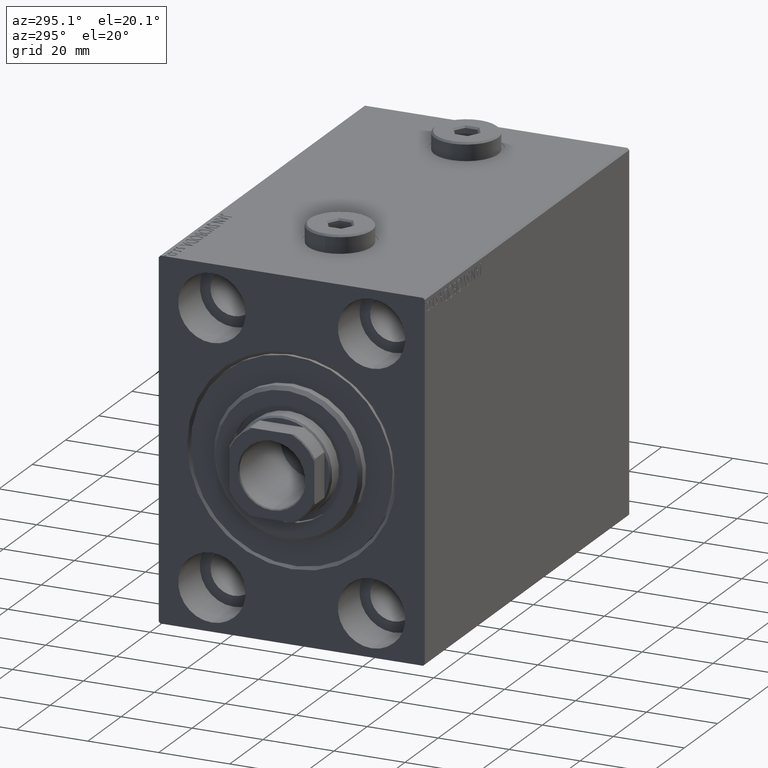
[diagram: clean part render]
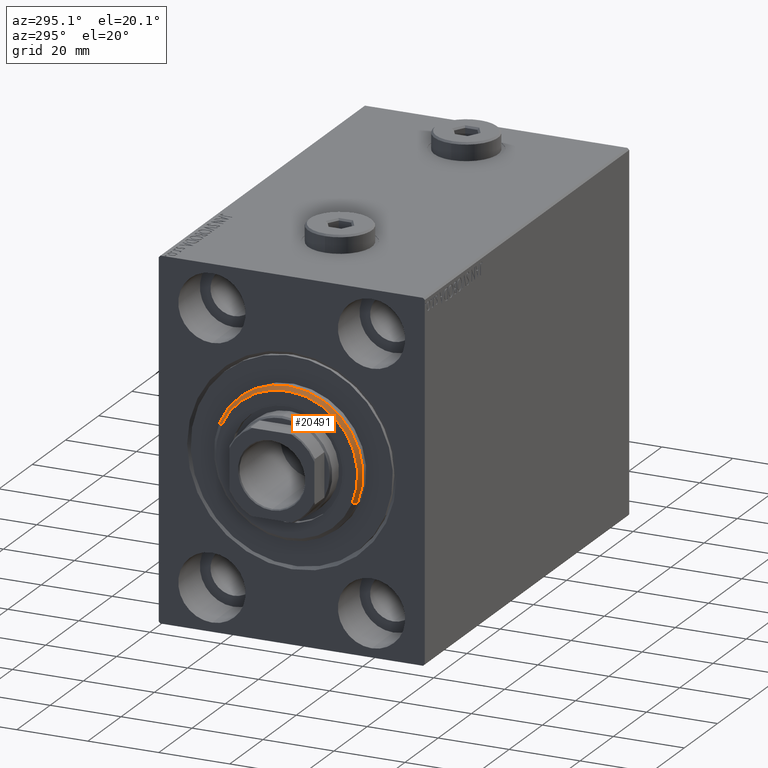
[diagram: same view with one face highlighted and labeled with its STEP entity id]
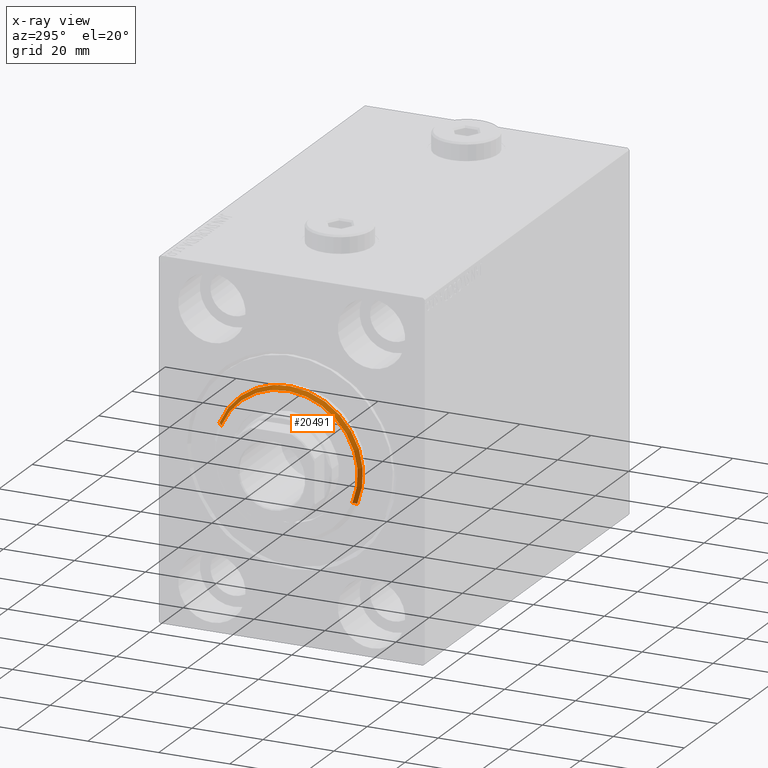
[diagram: x-ray of the same camera — body ghosted, the highlighted face saturated]
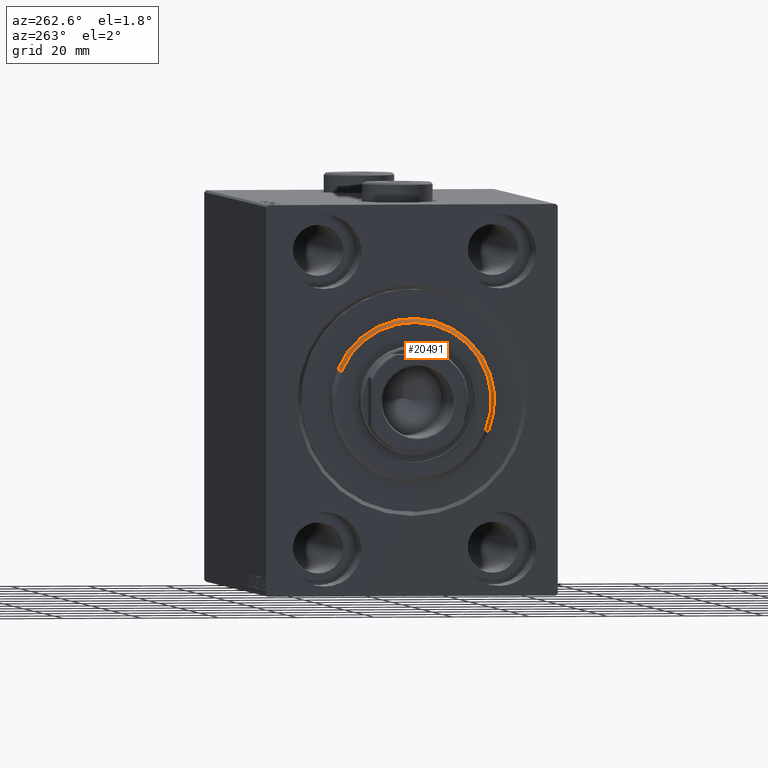
[diagram: same view with one face highlighted and labeled with its STEP entity id]
A machine part, auxiliary view. The second image highlights one B-rep face of the part: STEP entity #20491.
The next image is the same camera in x-ray: the body ghosted, the highlighted face saturated — about 0% of this face is hidden behind the body in this view.
A second angle (auxiliary view) of the same face is appended — the face is thin or edge-on in the first view.
In plain terms, the highlighted conical surface has half-angle 45 deg.
Its self-contained STEP definition (entity closure, byte-faithful):
#431 = EDGE_CURVE ( 'NONE', #13514, #24171, #16527, .T. ) ;
#6268 = VERTEX_POINT ( 'NONE', #14083 ) ;
#7127 = AXIS2_PLACEMENT_3D ( 'NONE', #32292, #11676, #14877 ) ;
#7785 = ORIENTED_EDGE ( 'NONE', *, *, #28834, .F. ) ;
#9041 = DIRECTION ( 'NONE',  ( -1.000000000000000000, 0.000000000000000000, 0.000000000000000000 ) ) ;
#11521 = ORIENTED_EDGE ( 'NONE', *, *, #17321, .T. ) ;
#11676 = DIRECTION ( 'NONE',  ( 1.000000000000000000, -0.000000000000000000, 0.000000000000000000 ) ) ;
#13514 = VERTEX_POINT ( 'NONE', #27471 ) ;
#14083 = CARTESIAN_POINT ( 'NONE',  ( 1.999999999999995781, 0.000000000000000000, 21.00000000000000000 ) ) ;
#14877 = DIRECTION ( 'NONE',  ( 0.000000000000000000, 0.000000000000000000, -1.000000000000000000 ) ) ;
#16424 = CARTESIAN_POINT ( 'NONE',  ( 1.999999999999995781, 0.000000000000000000, 0.000000000000000000 ) ) ;
#16527 = LINE ( 'NONE', #23191, #41278 ) ;
#17321 = EDGE_CURVE ( 'NONE', #36779, #6268, #35363, .T. ) ;
#17895 = AXIS2_PLACEMENT_3D ( 'NONE', #16424, #40721, #19185 ) ;
#18416 = DIRECTION ( 'NONE',  ( -0.7071067811865474617, 0.000000000000000000, 0.7071067811865474617 ) ) ;
#19006 = CONICAL_SURFACE ( 'NONE', #28509, 19.99999999999999645, 0.7853981633974482790 ) ;
#19185 = DIRECTION ( 'NONE',  ( 0.000000000000000000, 0.000000000000000000, -1.000000000000000000 ) ) ;
#19309 = CARTESIAN_POINT ( 'NONE',  ( 1.999999999999995781, 2.571758278209441661E-15, -21.00000000000000000 ) ) ;
#19978 = DIRECTION ( 'NONE',  ( -0.7071067811865474617, 8.659560562354932858E-17, -0.7071067811865474617 ) ) ;
#20491 = ADVANCED_FACE ( 'NONE', ( #35715 ), #19006, .T. ) ;
#21042 = CIRCLE ( 'NONE', #7127, 19.99999999999999645 ) ;
#22194 = CARTESIAN_POINT ( 'NONE',  ( 3.000000000000000000, 0.000000000000000000, 19.99999999999999645 ) ) ;
#23040 = DIRECTION ( 'NONE',  ( 0.000000000000000000, 0.000000000000000000, 1.000000000000000000 ) ) ;
#23191 = CARTESIAN_POINT ( 'NONE',  ( 3.000000000000000000, 2.449293598294706119E-15, -19.99999999999999645 ) ) ;
#24171 = VERTEX_POINT ( 'NONE', #19309 ) ;
#25555 = VECTOR ( 'NONE', #18416, 1000.000000000000114 ) ;
#27425 = ORIENTED_EDGE ( 'NONE', *, *, #431, .F. ) ;
#27471 = CARTESIAN_POINT ( 'NONE',  ( 3.000000000000000000, 2.510525938252074087E-15, -19.99999999999999645 ) ) ;
#28509 = AXIS2_PLACEMENT_3D ( 'NONE', #40454, #9041, #23040 ) ;
#28834 = EDGE_CURVE ( 'NONE', #24171, #6268, #43512, .T. ) ;
#32292 = CARTESIAN_POINT ( 'NONE',  ( 3.000000000000000000, 0.000000000000000000, 0.000000000000000000 ) ) ;
#32609 = CARTESIAN_POINT ( 'NONE',  ( 3.000000000000000000, 0.000000000000000000, 19.99999999999999645 ) ) ;
#33586 = ORIENTED_EDGE ( 'NONE', *, *, #35671, .F. ) ;
#35363 = LINE ( 'NONE', #32609, #25555 ) ;
#35671 = EDGE_CURVE ( 'NONE', #36779, #13514, #21042, .T. ) ;
#35715 = FACE_OUTER_BOUND ( 'NONE', #39089, .T. ) ;
#36779 = VERTEX_POINT ( 'NONE', #22194 ) ;
#39089 = EDGE_LOOP ( 'NONE', ( #27425, #33586, #11521, #7785 ) ) ;
#40454 = CARTESIAN_POINT ( 'NONE',  ( 3.000000000000000000, 0.000000000000000000, 0.000000000000000000 ) ) ;
#40721 = DIRECTION ( 'NONE',  ( -1.000000000000000000, 0.000000000000000000, 0.000000000000000000 ) ) ;
#41278 = VECTOR ( 'NONE', #19978, 1000.000000000000114 ) ;
#43512 = CIRCLE ( 'NONE', #17895, 21.00000000000000000 ) ;